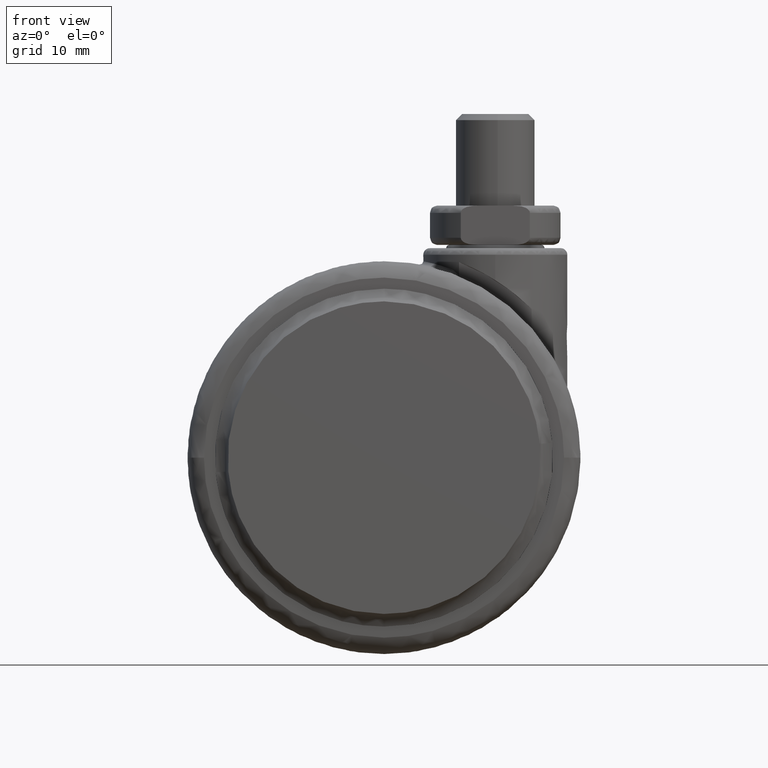
[diagram: clean part render]
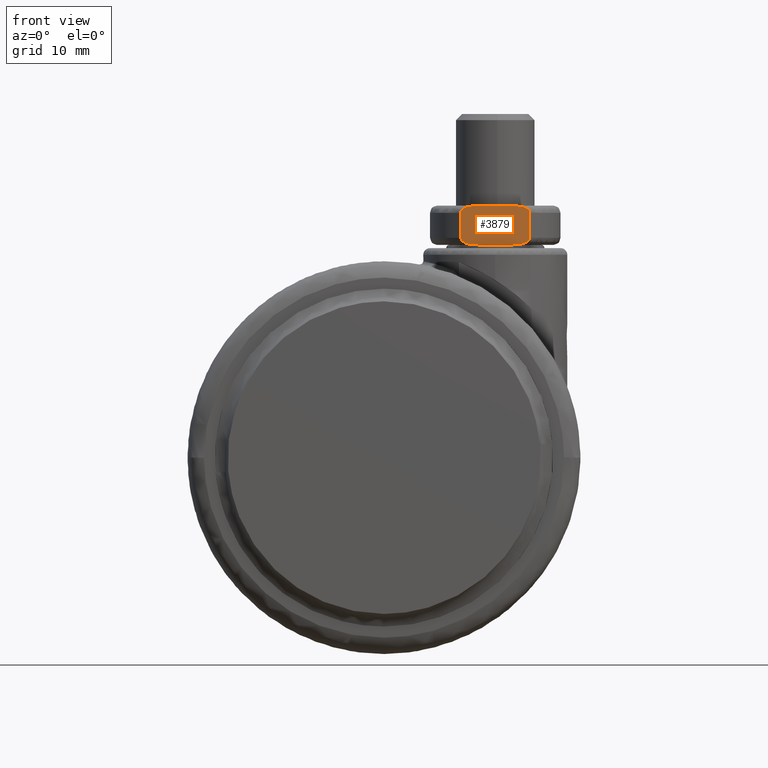
[diagram: same view with one face highlighted and labeled with its STEP entity id]
A machine part, front view. The second image highlights one B-rep face of the part: STEP entity #3879.
In plain terms, the highlighted face is a freeform B-spline surface patch.
Its self-contained STEP definition (entity closure, byte-faithful):
#3704=CARTESIAN_POINT('',(11.205917239038710,-8.500000000000000,38.799699988370840));
#3705=CARTESIAN_POINT('',(11.205917239038710,-8.500000000000000,32.200299850696616));
#3706=CARTESIAN_POINT('',(22.794083043549410,-8.500000000000000,38.799699988370840));
#3707=CARTESIAN_POINT('',(22.794083043549410,-8.500000000000000,32.200299850696616));
#3708=B_SPLINE_SURFACE_WITH_KNOTS('',1,1,((#3704,#3706),(#3705,#3707)),.UNSPECIFIED.,.F.,.F.,.U.,(2,2),(2,2),(0.0,6.599400137674216),(0.0,11.588165804510711),.UNSPECIFIED.);
#3709=CARTESIAN_POINT('',(19.638181191654400,-8.500000000000000,32.500000000000000));
#3710=VERTEX_POINT('',#3709);
#3711=CARTESIAN_POINT('',(14.361818808345721,-8.500000000000000,32.500000000000000));
#3712=VERTEX_POINT('',#3711);
#3713=CARTESIAN_POINT('',(19.638181191654400,-8.500000000000000,32.500000000000000));
#3714=CARTESIAN_POINT('',(14.361818808345721,-8.500000000000000,32.500000000000000));
#3715=QUASI_UNIFORM_CURVE('',1,(#3713,#3714),.UNSPECIFIED.,.F.,.U.);
#3716=EDGE_CURVE('',#3710,#3712,#3715,.T.);
#3717=ORIENTED_EDGE('',*,*,#3716,.F.);
#3718=CARTESIAN_POINT('',(22.267826876426302,-8.500000000000000,33.600000000000001));
#3719=VERTEX_POINT('',#3718);
#3720=CARTESIAN_POINT('',(22.267826876426302,-8.500000000000000,33.600000000000001));
#3721=CARTESIAN_POINT('',(22.267827511729021,-8.500000000000000,33.589467372520318));
#3722=CARTESIAN_POINT('',(22.267543647990159,-8.500000000000000,33.578948791420267));
#3723=CARTESIAN_POINT('',(22.264439141995432,-8.500000000000000,33.521853418594752));
#3724=CARTESIAN_POINT('',(22.256336088816511,-8.500000000000002,33.476046352131092));
#3725=CARTESIAN_POINT('',(22.236344710736532,-8.500000000000005,33.408531005486019));
#3726=CARTESIAN_POINT('',(22.228358089610349,-8.500000000000002,33.386253024584761));
#3727=CARTESIAN_POINT('',(22.210281960021739,-8.500000000000002,33.343066567911187));
#3728=CARTESIAN_POINT('',(22.200156232646819,-8.500000000000000,33.322022892130150));
#3729=CARTESIAN_POINT('',(22.166806220449910,-8.500000000000000,33.260393917347443));
#3730=CARTESIAN_POINT('',(22.140371612249769,-8.500000000000000,33.221036821638620));
#3731=CARTESIAN_POINT('',(22.082425731231499,-8.500000000000002,33.147848885380263));
#3732=CARTESIAN_POINT('',(22.050855106643130,-8.500000000000002,33.113787866452881));
#3733=CARTESIAN_POINT('',(21.983545437034561,-8.500000000000002,33.049730371045769));
#3734=CARTESIAN_POINT('',(21.947728350744839,-8.500000000000002,33.019689977659702));
#3735=CARTESIAN_POINT('',(21.872844526897971,-8.500000000000002,32.963282375787628));
#3736=CARTESIAN_POINT('',(21.834254209838811,-8.500000000000002,32.937257064035450));
#3737=CARTESIAN_POINT('',(21.715715075530952,-8.500000000000002,32.864432286946681));
#3738=CARTESIAN_POINT('',(21.633030704672660,-8.500000000000002,32.822822082581609));
#3739=CARTESIAN_POINT('',(21.462386278834231,-8.500000000000002,32.749609484195787));
#3740=CARTESIAN_POINT('',(21.374131792486128,-8.500000000000000,32.718016879428497));
#3741=CARTESIAN_POINT('',(21.108224087345690,-8.500000000000000,32.636484424218210));
#3742=CARTESIAN_POINT('',(20.927750763651812,-8.500000000000000,32.598689067724742));
#3743=CARTESIAN_POINT('',(20.654134111904831,-8.500000000000000,32.557030537020211));
#3744=CARTESIAN_POINT('',(20.562427895770160,-8.499999999999998,32.545734013602562));
#3745=CARTESIAN_POINT('',(20.378206221758820,-8.499999999999998,32.527326706502564));
#3746=CARTESIAN_POINT('',(20.285578733792729,-8.499999999999998,32.520215412557413));
#3747=CARTESIAN_POINT('',(20.008003142706901,-8.500000000000000,32.504028454032593));
#3748=CARTESIAN_POINT('',(19.823060172415680,-8.499999999999998,32.500000000018453));
#3749=CARTESIAN_POINT('',(19.638181191654400,-8.500000000000000,32.500000000000000));
#3750=B_SPLINE_CURVE_WITH_KNOTS('',3,(#3720,#3721,#3722,#3723,#3724,#3725,#3726,#3727,#3728,#3729,#3730,#3731,#3732,#3733,#3734,#3735,#3736,#3737,#3738,#3739,#3740,#3741,#3742,#3743,#3744,#3745,#3746,#3747,#3748,#3749),.UNSPECIFIED.,.F.,.U.,(4,2,2,2,2,2,2,2,2,2,2,2,2,2,4),(0.826376939406705,0.828125000000059,0.835937500000059,0.839843750000058,0.843750000000057,0.851562500000054,0.859375000000051,0.867187500000049,0.875000000000046,0.890625000000040,0.906250000000035,0.937500000000024,0.953125000000018,0.968750000000012,1.0),.UNSPECIFIED.);
#3751=EDGE_CURVE('',#3719,#3710,#3750,.T.);
#3752=ORIENTED_EDGE('',*,*,#3751,.F.);
#3753=CARTESIAN_POINT('',(22.267826876426302,-8.500000000000000,37.400000000000013));
#3754=VERTEX_POINT('',#3753);
#3755=CARTESIAN_POINT('',(22.267826876426302,-8.500000000000000,37.400000000000013));
#3756=CARTESIAN_POINT('',(22.267826876426302,-8.500000000000000,33.600000000000001));
#3757=QUASI_UNIFORM_CURVE('',1,(#3755,#3756),.UNSPECIFIED.,.F.,.U.);
#3758=EDGE_CURVE('',#3754,#3719,#3757,.T.);
#3759=ORIENTED_EDGE('',*,*,#3758,.F.);
#3760=CARTESIAN_POINT('',(19.638181191654400,-8.500000000000000,38.500000000000000));
#3761=VERTEX_POINT('',#3760);
#3762=CARTESIAN_POINT('',(19.638181191654400,-8.500000000000000,38.500000000000000));
#3763=CARTESIAN_POINT('',(19.819294372862860,-8.500000000000002,38.499999999985732));
#3764=CARTESIAN_POINT('',(20.000012545797119,-8.500000000000000,38.496117348309532));
#3765=CARTESIAN_POINT('',(20.360165056668279,-8.499999999999998,38.475732855913400));
#3766=CARTESIAN_POINT('',(20.539605970814019,-8.500000000000000,38.459295654670314));
#3767=CARTESIAN_POINT('',(20.896513869611969,-8.500000000000000,38.407018922843093));
#3768=CARTESIAN_POINT('',(21.074005390611539,-8.500000000000000,38.371420567181531));
#3769=CARTESIAN_POINT('',(21.293837780528420,-8.500000000000000,38.306949389908823));
#3770=CARTESIAN_POINT('',(21.337699813176432,-8.500000000000002,38.293028530757120));
#3771=CARTESIAN_POINT('',(21.425177884418488,-8.500000000000000,38.262768865071543));
#3772=CARTESIAN_POINT('',(21.468667990497622,-8.500000000000002,38.246465471662177));
#3773=CARTESIAN_POINT('',(21.597074968137370,-8.500000000000000,38.193956335203673));
#3774=CARTESIAN_POINT('',(21.680398286471640,-8.500000000000000,38.154088392751163));
#3775=CARTESIAN_POINT('',(21.800623135049410,-8.499999999999998,38.084141955876497));
#3776=CARTESIAN_POINT('',(21.839851619858770,-8.499999999999998,38.059117707353053));
#3777=CARTESIAN_POINT('',(21.915053745879032,-8.500000000000002,38.005860821964163));
#3778=CARTESIAN_POINT('',(21.951186558837950,-8.500000000000000,37.977545807658181));
#3779=CARTESIAN_POINT('',(22.019943712362021,-8.499999999999996,37.916885614065613));
#3780=CARTESIAN_POINT('',(22.052575458163489,-8.500000000000000,37.884548941137567));
#3781=CARTESIAN_POINT('',(22.113435879841290,-8.499999999999996,37.814817810517098));
#3782=CARTESIAN_POINT('',(22.141765474719978,-8.500000000000000,37.777160591514019));
#3783=CARTESIAN_POINT('',(22.190703379604031,-8.500000000000002,37.698384118301092));
#3784=CARTESIAN_POINT('',(22.211598945505251,-8.500000000000000,37.657015034713552));
#3785=CARTESIAN_POINT('',(22.244633129854449,-8.499999999999998,37.569422600380861));
#3786=CARTESIAN_POINT('',(22.256249889756472,-8.500000000000000,37.524380629105337));
#3787=CARTESIAN_POINT('',(22.265586554472069,-8.500000000000002,37.455865874882093));
#3788=CARTESIAN_POINT('',(22.267366123700398,-8.500000000000000,37.432816167630641));
#3789=CARTESIAN_POINT('',(22.267801794299011,-8.500000000000000,37.406368663249182));
#3790=CARTESIAN_POINT('',(22.267827555835620,-8.500000000000000,37.403186374478132));
#3791=CARTESIAN_POINT('',(22.267826876426302,-8.500000000000000,37.400000000000013));
#3792=B_SPLINE_CURVE_WITH_KNOTS('',3,(#3762,#3763,#3764,#3765,#3766,#3767,#3768,#3769,#3770,#3771,#3772,#3773,#3774,#3775,#3776,#3777,#3778,#3779,#3780,#3781,#3782,#3783,#3784,#3785,#3786,#3787,#3788,#3789,#3790,#3791),.UNSPECIFIED.,.F.,.U.,(4,2,2,2,2,2,2,2,2,2,2,2,2,2,4),(0.0,0.031249999999996,0.062499999999991,0.093749999999987,0.101562499999987,0.109374999999986,0.124999999999986,0.132812499999985,0.140624999999985,0.148437499999984,0.156249999999984,0.164062499999983,0.171874999999983,0.175781249999983,0.176314407642915),.UNSPECIFIED.);
#3793=EDGE_CURVE('',#3761,#3754,#3792,.T.);
#3794=ORIENTED_EDGE('',*,*,#3793,.F.);
#3795=CARTESIAN_POINT('',(14.361818808345721,-8.500000000000000,38.500000000000000));
#3796=VERTEX_POINT('',#3795);
#3797=CARTESIAN_POINT('',(19.638181191654400,-8.500000000000000,38.500000000000000));
#3798=CARTESIAN_POINT('',(14.361818808345721,-8.500000000000000,38.500000000000000));
#3799=QUASI_UNIFORM_CURVE('',1,(#3797,#3798),.UNSPECIFIED.,.F.,.U.);
#3800=EDGE_CURVE('',#3761,#3796,#3799,.T.);
#3801=ORIENTED_EDGE('',*,*,#3800,.T.);
#3802=CARTESIAN_POINT('',(11.732173123573560,-8.500000000000000,37.400000000000013));
#3803=VERTEX_POINT('',#3802);
#3804=CARTESIAN_POINT('',(11.732173123573560,-8.500000000000000,37.400000000000013));
#3805=CARTESIAN_POINT('',(11.732172488270839,-8.500000000000000,37.410532627479583));
#3806=CARTESIAN_POINT('',(11.732456352009690,-8.500000000000000,37.421051208579513));
#3807=CARTESIAN_POINT('',(11.735560858004391,-8.500000000000000,37.478146581404921));
#3808=CARTESIAN_POINT('',(11.743663911183299,-8.500000000000000,37.523953647868623));
#3809=CARTESIAN_POINT('',(11.763655289263230,-8.499999999999996,37.591468994513669));
#3810=CARTESIAN_POINT('',(11.771641910389411,-8.500000000000000,37.613746975414962));
#3811=CARTESIAN_POINT('',(11.789718039978011,-8.500000000000002,37.656933432088593));
#3812=CARTESIAN_POINT('',(11.799843767352931,-8.500000000000000,37.677977107869587));
#3813=CARTESIAN_POINT('',(11.833193779549809,-8.500000000000000,37.739606082652337));
#3814=CARTESIAN_POINT('',(11.859628387749940,-8.500000000000000,37.778963178361167));
#3815=CARTESIAN_POINT('',(11.917574268768210,-8.499999999999998,37.852151114619573));
#3816=CARTESIAN_POINT('',(11.949144893356570,-8.500000000000000,37.886212133546962));
#3817=CARTESIAN_POINT('',(12.016454562965150,-8.499999999999998,37.950269628954082));
#3818=CARTESIAN_POINT('',(12.052271649254850,-8.500000000000000,37.980310022340149));
#3819=CARTESIAN_POINT('',(12.127155473101739,-8.499999999999998,38.036717624212251));
#3820=CARTESIAN_POINT('',(12.165745790160910,-8.500000000000000,38.062742935964451));
#3821=CARTESIAN_POINT('',(12.284284924468800,-8.500000000000002,38.135567713053263));
#3822=CARTESIAN_POINT('',(12.366969295327090,-8.500000000000000,38.177177917418319));
#3823=CARTESIAN_POINT('',(12.537613721165521,-8.500000000000000,38.250390515804149));
#3824=CARTESIAN_POINT('',(12.625868207513630,-8.500000000000002,38.281983120571446));
#3825=CARTESIAN_POINT('',(12.891775912654140,-8.500000000000000,38.363515575781761));
#3826=CARTESIAN_POINT('',(13.072249236348069,-8.499999999999998,38.401310932275237));
#3827=CARTESIAN_POINT('',(13.345865888095091,-8.500000000000000,38.442969462979804));
#3828=CARTESIAN_POINT('',(13.437572104229771,-8.500000000000000,38.454265986397438));
#3829=CARTESIAN_POINT('',(13.621793778241130,-8.500000000000004,38.472673293497436));
#3830=CARTESIAN_POINT('',(13.714421266207230,-8.500000000000000,38.479784587442602));
#3831=CARTESIAN_POINT('',(13.991996857293120,-8.500000000000000,38.495971545967421));
#3832=CARTESIAN_POINT('',(14.176939827584400,-8.500000000000000,38.499999999981547));
#3833=CARTESIAN_POINT('',(14.361818808345721,-8.500000000000000,38.500000000000000));
#3834=B_SPLINE_CURVE_WITH_KNOTS('',3,(#3804,#3805,#3806,#3807,#3808,#3809,#3810,#3811,#3812,#3813,#3814,#3815,#3816,#3817,#3818,#3819,#3820,#3821,#3822,#3823,#3824,#3825,#3826,#3827,#3828,#3829,#3830,#3831,#3832,#3833),.UNSPECIFIED.,.F.,.U.,(4,2,2,2,2,2,2,2,2,2,2,2,2,2,4),(0.826376939406648,0.828124999999982,0.835937499999982,0.839843749999982,0.843749999999982,0.851562499999983,0.859374999999984,0.867187499999985,0.874999999999986,0.890624999999988,0.906249999999989,0.937499999999993,0.953124999999995,0.968749999999996,1.0),.UNSPECIFIED.);
#3835=EDGE_CURVE('',#3803,#3796,#3834,.T.);
#3836=ORIENTED_EDGE('',*,*,#3835,.F.);
#3837=CARTESIAN_POINT('',(11.732173123573560,-8.500000000000000,33.600000000000001));
#3838=VERTEX_POINT('',#3837);
#3839=CARTESIAN_POINT('',(11.732173123573560,-8.500000000000000,37.400000000000013));
#3840=CARTESIAN_POINT('',(11.732173123573560,-8.500000000000000,33.600000000000001));
#3841=QUASI_UNIFORM_CURVE('',1,(#3839,#3840),.UNSPECIFIED.,.F.,.U.);
#3842=EDGE_CURVE('',#3803,#3838,#3841,.T.);
#3843=ORIENTED_EDGE('',*,*,#3842,.T.);
#3844=CARTESIAN_POINT('',(14.361818808345721,-8.500000000000000,32.500000000000000));
#3845=CARTESIAN_POINT('',(14.180705627137280,-8.500000000000002,32.500000000014289));
#3846=CARTESIAN_POINT('',(13.999987454203030,-8.500000000000000,32.503882651690482));
#3847=CARTESIAN_POINT('',(13.639834943331911,-8.499999999999998,32.524267144086572));
#3848=CARTESIAN_POINT('',(13.460394029186190,-8.500000000000000,32.540704345329686));
#3849=CARTESIAN_POINT('',(13.103486130388291,-8.500000000000002,32.592981077156857));
#3850=CARTESIAN_POINT('',(12.925994609388731,-8.500000000000002,32.628579432818377));
#3851=CARTESIAN_POINT('',(12.706162219471871,-8.499999999999998,32.693050610091049));
#3852=CARTESIAN_POINT('',(12.662300186823860,-8.500000000000004,32.706971469242767));
#3853=CARTESIAN_POINT('',(12.574822115581821,-8.500000000000000,32.737231134928322));
#3854=CARTESIAN_POINT('',(12.531332009502639,-8.500000000000004,32.753534528337703));
#3855=CARTESIAN_POINT('',(12.402925031862900,-8.500000000000002,32.806043664796171));
#3856=CARTESIAN_POINT('',(12.319601713528630,-8.500000000000002,32.845911607248652));
#3857=CARTESIAN_POINT('',(12.199376864950850,-8.500000000000002,32.915858044123247));
#3858=CARTESIAN_POINT('',(12.160148380141450,-8.500000000000000,32.940882292646712));
#3859=CARTESIAN_POINT('',(12.084946254121190,-8.500000000000004,32.994139178035617));
#3860=CARTESIAN_POINT('',(12.048813441162251,-8.500000000000004,33.022454192341577));
#3861=CARTESIAN_POINT('',(11.980056287638160,-8.499999999999998,33.083114385934067));
#3862=CARTESIAN_POINT('',(11.947424541836689,-8.500000000000002,33.115451058862121));
#3863=CARTESIAN_POINT('',(11.886564120158861,-8.500000000000002,33.185182189482532));
#3864=CARTESIAN_POINT('',(11.858234525280130,-8.499999999999998,33.222839408485633));
#3865=CARTESIAN_POINT('',(11.809296620396060,-8.500000000000004,33.301615881698559));
#3866=CARTESIAN_POINT('',(11.788401054494789,-8.500000000000004,33.342984965286078));
#3867=CARTESIAN_POINT('',(11.755366870145540,-8.500000000000002,33.430577399618699));
#3868=CARTESIAN_POINT('',(11.743750110243470,-8.500000000000000,33.475619370894272));
#3869=CARTESIAN_POINT('',(11.734413445527840,-8.500000000000002,33.544134125117523));
#3870=CARTESIAN_POINT('',(11.732633876299481,-8.500000000000002,33.567183832368947));
#3871=CARTESIAN_POINT('',(11.732198205700850,-8.500000000000000,33.593631336750541));
#3872=CARTESIAN_POINT('',(11.732172444164240,-8.500000000000000,33.596813625521733));
#3873=CARTESIAN_POINT('',(11.732173123573560,-8.500000000000000,33.600000000000001));
#3874=B_SPLINE_CURVE_WITH_KNOTS('',3,(#3844,#3845,#3846,#3847,#3848,#3849,#3850,#3851,#3852,#3853,#3854,#3855,#3856,#3857,#3858,#3859,#3860,#3861,#3862,#3863,#3864,#3865,#3866,#3867,#3868,#3869,#3870,#3871,#3872,#3873),.UNSPECIFIED.,.F.,.U.,(4,2,2,2,2,2,2,2,2,2,2,2,2,2,4),(0.0,0.031250000000012,0.062500000000024,0.093750000000036,0.101562500000039,0.109375000000042,0.125000000000048,0.132812500000051,0.140625000000054,0.148437500000057,0.156250000000060,0.164062500000063,0.171875000000066,0.175781250000067,0.176314407643022),.UNSPECIFIED.);
#3875=EDGE_CURVE('',#3712,#3838,#3874,.T.);
#3876=ORIENTED_EDGE('',*,*,#3875,.F.);
#3877=EDGE_LOOP('',(#3717,#3752,#3759,#3794,#3801,#3836,#3843,#3876));
#3878=FACE_OUTER_BOUND('',#3877,.T.);
#3879=ADVANCED_FACE('',(#3878),#3708,.T.);